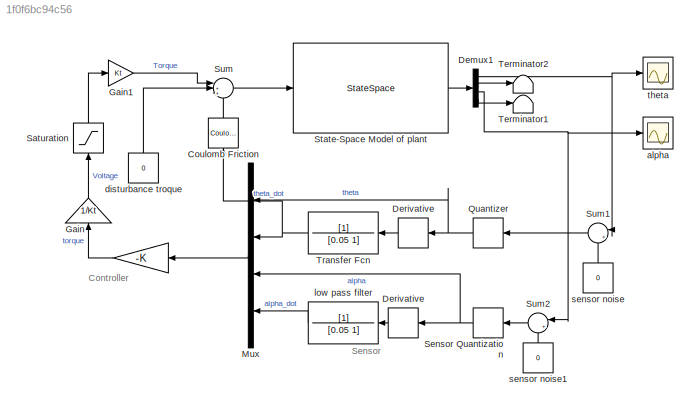
MODEL slx_1f0f6bc94c56
KIND model
CONFIG AbsTol = auto
CONFIG EnableMultiTasking = off
CONFIG FixedStep = 1e-3
CONFIG MaxStep = auto
CONFIG MinStep = auto
CONFIG RelTol = 1e-3
CONFIG SampleTimeConstraint = Unconstrained
CONFIG Solver = FixedStepAuto
CONFIG SolverName = FixedStepAuto
CONFIG StartTime = 0.0
CONFIG StopTime = 50
BLOCK [Gain]  
  Gain = -K
  Multiplication = Matrix(K*u)
  OutDataTypeStr = Inherit: Inherit via internal rule
  ParamDataTypeStr = Inherit: Inherit via internal rule
  SaturateOnIntegerOverflow = off
BLOCK [Constant]  disturbance troque
  Value = 0
BLOCK [Scope]  theta 
  Floating = off
  NumInputPorts = 1
  Ports = [1]
  ScopeSpecificationString = Simulink.scopes.TimeScopeBlockCfg('CurrentConfiguration', extmgr.ConfigurationSet(extmgr.Configuration('Core','General UI',true),extmgr.Configuration('Core','Source UI',true),extmgr.Configuration('Sources','WiredSimulink',true),extmgr.Configuration('Visuals','Time Domain',true,'SerializedDisplays',{struct('MinYLimReal','-0.29416','MaxYLimReal','2.64434','YLabelReal','','MinYLimMag','0.00000','MaxY...<+1357ch>
BLOCK [Reference] Coulomb Friction  REF=simulink/Discontinuities/Coulomb &
Viscous Friction
  Ports = [1, 1]
  SourceBlock = simulink/Discontinuities/Coulomb &\nViscous Friction
  SourceProductBaseCode = SL
  SourceProductName = Simulink
  SourceType = Coulombic and Viscous Friction
BLOCK [Demux] Demux1
  DisplayOption = bar
  Ports = [1, 4]
BLOCK [Derivative] Derivative
  CoefficientInTFapproximation = 0
BLOCK [Derivative] Derivative 
  CoefficientInTFapproximation = 0
BLOCK [Gain] Gain
  Gain = 1/Kt
  OutDataTypeStr = Inherit: Inherit via internal rule
  ParamDataTypeStr = Inherit: Inherit via internal rule
  SaturateOnIntegerOverflow = off
BLOCK [Gain] Gain1
  Gain = Kt
  OutDataTypeStr = Inherit: Inherit via internal rule
  ParamDataTypeStr = Inherit: Inherit via internal rule
  SaturateOnIntegerOverflow = off
BLOCK [Mux] Mux
  DisplayOption = bar
  Ports = [4, 1]
BLOCK [Quantizer] Quantizer
  QuantizationInterval = 0.0018*pi/180
BLOCK [Saturate] Saturation 
  InputPortMap = u0
  LowerLimit = -3
  Ports = [1, 1]
  UpperLimit = 3
BLOCK [Quantizer] Sensor Quantization
  QuantizationInterval = 0.0018*pi/180
BLOCK [StateSpace] State-Space Model of plant
  A = A
  B = B
  C = C
  D = D
  InitialCondition = ini_cond
  Ports = [1, 1]
BLOCK [Sum] Sum
  IconShape = round
  InputSameDT = off
  Inputs = |+++
  OutDataTypeStr = Inherit: Inherit via internal rule
  Ports = [3, 1]
  SaturateOnIntegerOverflow = off
BLOCK [Sum] Sum1
  IconShape = round
  InputSameDT = off
  Inputs = |++
  OutDataTypeStr = Inherit: Inherit via internal rule
  Ports = [2, 1]
  SaturateOnIntegerOverflow = off
BLOCK [Sum] Sum2
  IconShape = round
  InputSameDT = off
  Inputs = |++
  OutDataTypeStr = Inherit: Inherit via internal rule
  Ports = [2, 1]
  SaturateOnIntegerOverflow = off
BLOCK [Terminator] Terminator1
BLOCK [Terminator] Terminator2
BLOCK [TransferFcn] Transfer Fcn
  Denominator = [0.05 1]
BLOCK [Scope] alpha 
  Floating = off
  NumInputPorts = 1
  Ports = [1]
  ScopeSpecificationString = Simulink.scopes.TimeScopeBlockCfg('CurrentConfiguration', extmgr.ConfigurationSet(extmgr.Configuration('Core','General UI',true),extmgr.Configuration('Core','Source UI',true),extmgr.Configuration('Sources','WiredSimulink',true,'DataLoggingVariableName','ScopeData1'),extmgr.Configuration('Visuals','Time Domain',true,'SerializedDisplays',{struct('MinYLimReal','-0.16003','MaxYLimReal','0.58223','YLab...<+1452ch>
BLOCK [TransferFcn] low pass filter
  Denominator = [0.05 1]
BLOCK [Constant] sensor noise
  Value = 0
BLOCK [Constant] sensor noise1
  Value = 0
ANNOTATION (root): Controller
ANNOTATION (root): Sensor
LINE  :1 -> Gain:1
LINE  disturbance troque:1 -> Sum:2
LINE Coulomb Friction:1 -> Sum:3
NET Demux1:1 ->  theta :1, Sum1:1
LINE Demux1:2 -> Terminator2:1
NET Demux1:3 -> Sum2:1, alpha :1
LINE Demux1:4 -> Terminator1:1
LINE Derivative :1 -> low pass filter:1
LINE Derivative:1 -> Transfer Fcn:1
LINE Gain1:1 -> Sum:1
LINE Gain:1 -> Saturation :1
LINE Mux:1 ->  :1
NET Quantizer:1 -> Derivative:1, Mux:1
LINE Saturation :1 -> Gain1:1
NET Sensor Quantization:1 -> Derivative :1, Mux:3
LINE State-Space Model of plant:1 -> Demux1:1
LINE Sum1:1 -> Quantizer:1
LINE Sum2:1 -> Sensor Quantization:1
LINE Sum:1 -> State-Space Model of plant:1
NET Transfer Fcn:1 -> Coulomb Friction:1, Mux:2
LINE low pass filter:1 -> Mux:4
LINE sensor noise1:1 -> Sum2:2
LINE sensor noise:1 -> Sum1:2
note: NET lines group one-source signal fan-out (src -> all destinations, sorted); 1:1 wires keep LINE
